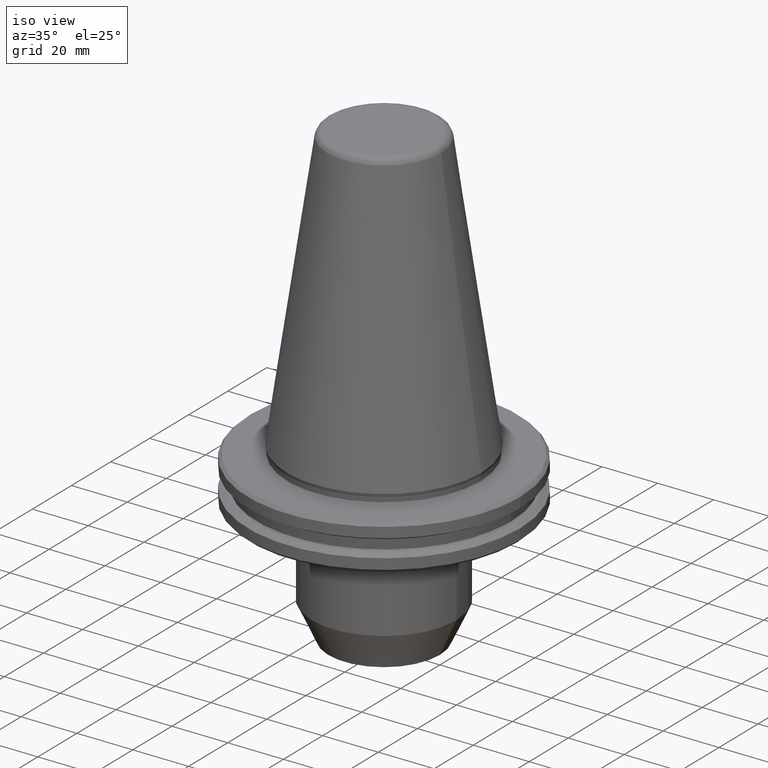
[diagram: clean part render]
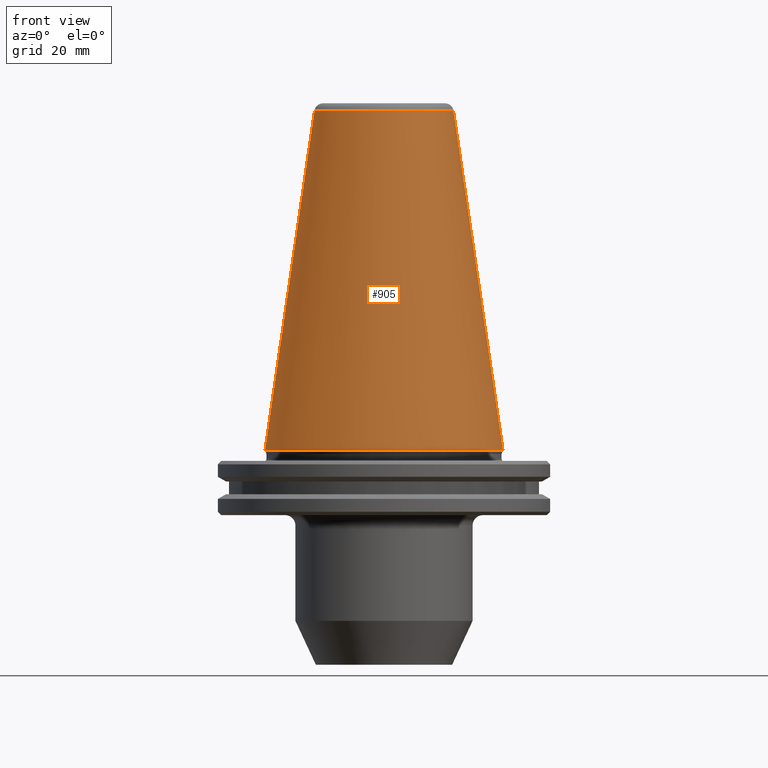
[diagram: tour spotlight — one face highlighted and labeled with its STEP entity id]
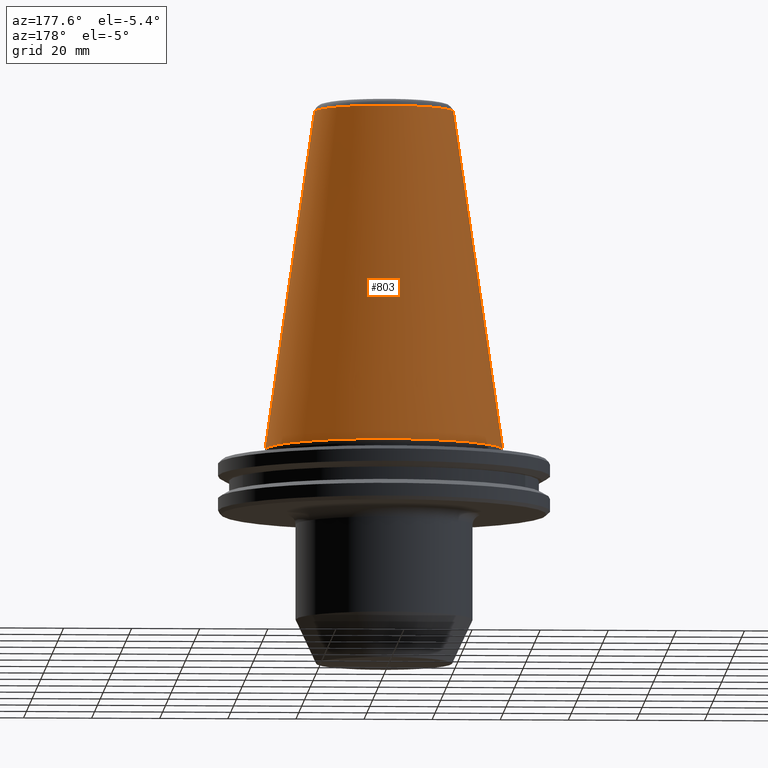
[diagram: tour spotlight — one face highlighted and labeled with its STEP entity id]
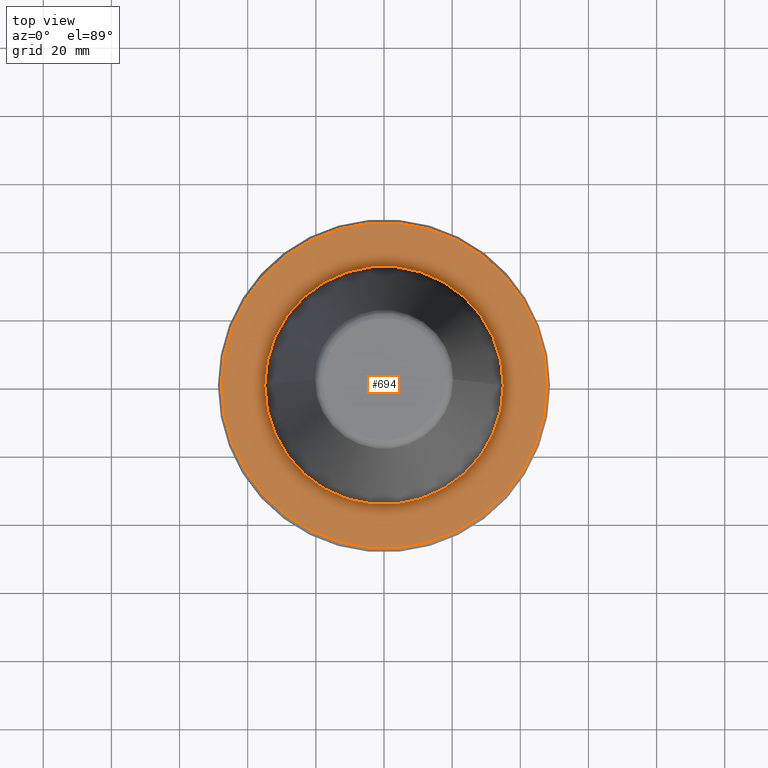
[diagram: tour spotlight — one face highlighted and labeled with its STEP entity id]
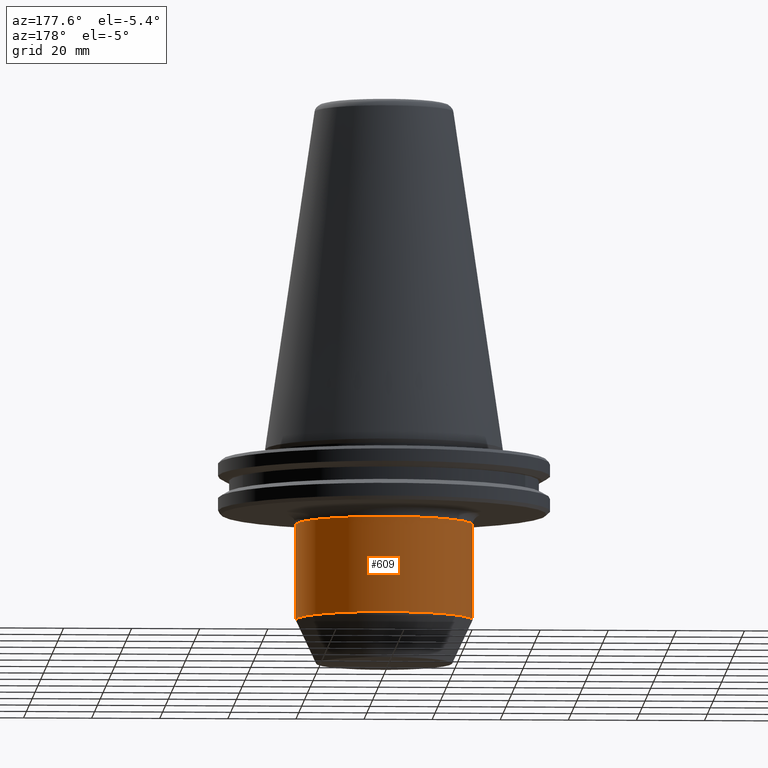
[diagram: tour spotlight — one face highlighted and labeled with its STEP entity id]
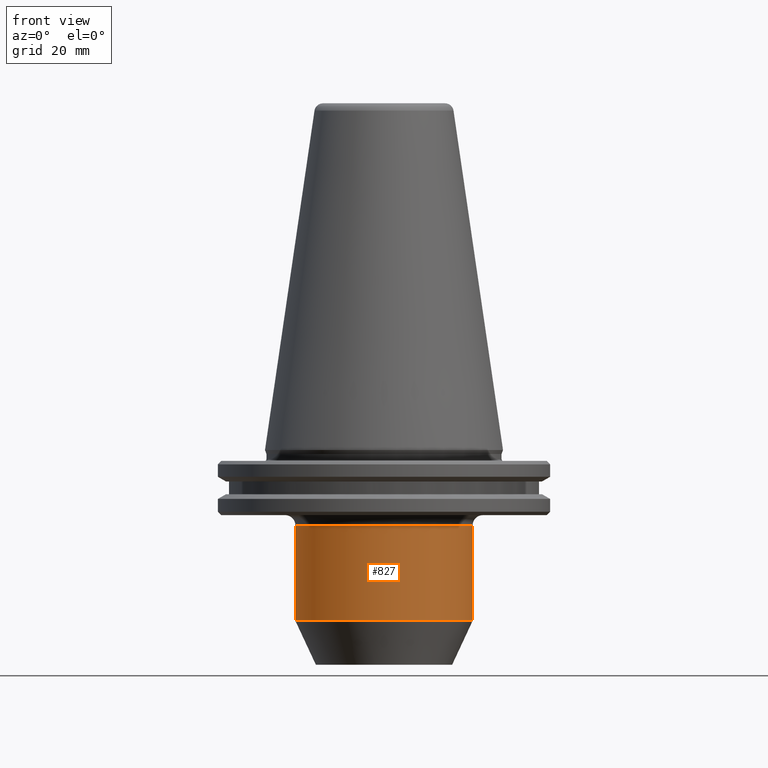
[diagram: tour spotlight — one face highlighted and labeled with its STEP entity id]
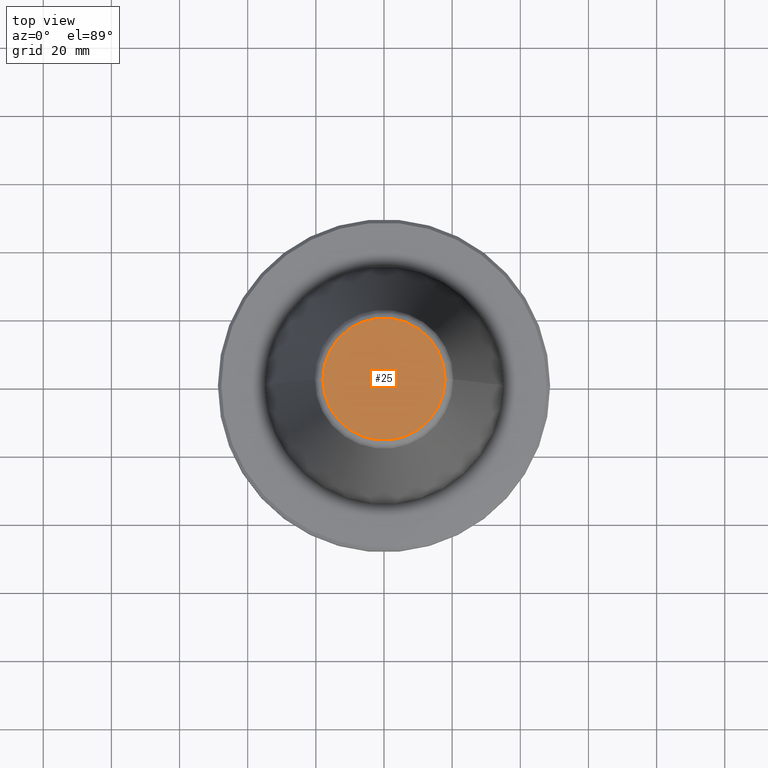
[diagram: tour spotlight — one face highlighted and labeled with its STEP entity id]
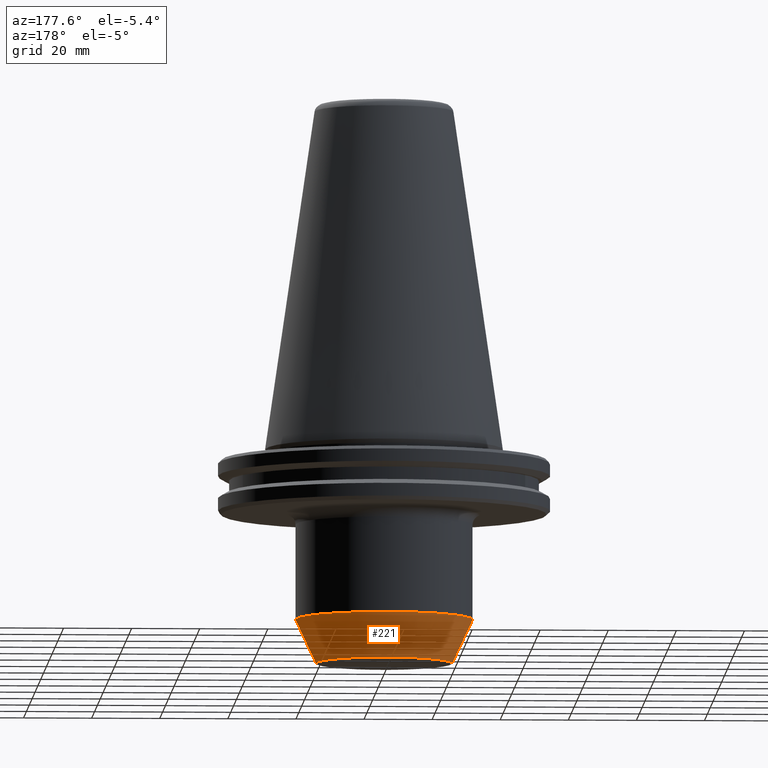
[diagram: tour spotlight — one face highlighted and labeled with its STEP entity id]
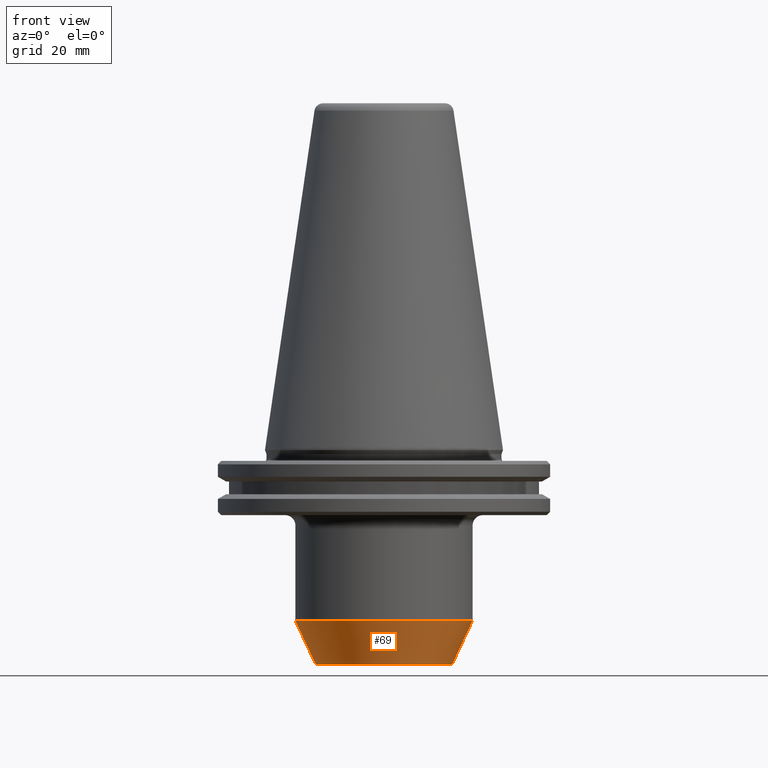
[diagram: tour spotlight — one face highlighted and labeled with its STEP entity id]
A machine part: a face-by-face anatomy tour. The part has 36 B-rep faces; the first image is the clean iso view, then the 8 largest visible faces are spotlighted one at a time (largest first), each with its STEP entity span.

Face 1 — front view, entity #905. In plain terms, the highlighted conical surface has half-angle 8.297 deg.
Definition (entity closure, byte-faithful):
#9 = DIRECTION ( 'NONE',  ( 1.000000000000000000, 0.0000000000000000000, 0.0000000000000000000 ) ) ;
#20 = DIRECTION ( 'NONE',  ( 1.000000000000000000, 0.0000000000000000000, 0.0000000000000000000 ) ) ;
#28 = DIRECTION ( 'NONE',  ( 0.1443082234293891500, 1.767266039134425100E-017, -0.9895327870518760800 ) ) ;
#44 = CARTESIAN_POINT ( 'NONE',  ( -34.92500000000009700, 0.0000000000000000000, -5.551115123125782700E-014 ) ) ;
#70 = AXIS2_PLACEMENT_3D ( 'NONE', #572, #255, #20 ) ;
#116 = CIRCLE ( 'NONE', #204, 34.92500000000009700 ) ;
#124 = CARTESIAN_POINT ( 'NONE',  ( 34.92500000000009700, 4.277078946022142700E-015, -5.551115123125782700E-014 ) ) ;
#167 = CARTESIAN_POINT ( 'NONE',  ( 0.0000000000000000000, 0.0000000000000000000, -5.551115123125782700E-014 ) ) ;
#172 = ORIENTED_EDGE ( 'NONE', *, *, #921, .F. ) ;
#183 = ORIENTED_EDGE ( 'NONE', *, *, #520, .T. ) ;
#189 = EDGE_CURVE ( 'NONE', #199, #673, #403, .T. ) ;
#199 = VERTEX_POINT ( 'NONE', #259 ) ;
#204 = AXIS2_PLACEMENT_3D ( 'NONE', #559, #856, #9 ) ;
#255 = DIRECTION ( 'NONE',  ( -0.0000000000000000000, -0.0000000000000000000, 1.000000000000000000 ) ) ;
#259 = CARTESIAN_POINT ( 'NONE',  ( -20.39829252569114000, 0.0000000000000000000, 99.61077055857353500 ) ) ;
#306 = CARTESIAN_POINT ( 'NONE',  ( -34.92500000000009700, 4.277078946022142700E-015, -5.551115123125782700E-014 ) ) ;
#387 = VECTOR ( 'NONE', #708, 1000.000000000000000 ) ;
#403 = CIRCLE ( 'NONE', #70, 20.39829252569114000 ) ;
#476 = FACE_OUTER_BOUND ( 'NONE', #665, .T. ) ;
#484 = DIRECTION ( 'NONE',  ( 0.0000000000000000000, 0.0000000000000000000, -1.000000000000000000 ) ) ;
#507 = VECTOR ( 'NONE', #28, 1000.000000000000000 ) ;
#520 = EDGE_CURVE ( 'NONE', #199, #724, #1001, .T. ) ;
#559 = CARTESIAN_POINT ( 'NONE',  ( 0.0000000000000000000, 0.0000000000000000000, -5.551115123125782700E-014 ) ) ;
#572 = CARTESIAN_POINT ( 'NONE',  ( 0.0000000000000000000, 0.0000000000000000000, 99.61077055857353500 ) ) ;
#598 = CARTESIAN_POINT ( 'NONE',  ( 20.39829252569114000, 3.387574655494023600E-015, 99.61077055857353500 ) ) ;
#640 = DIRECTION ( 'NONE',  ( -1.000000000000000000, 0.0000000000000000000, 0.0000000000000000000 ) ) ;
#665 = EDGE_LOOP ( 'NONE', ( #172, #971, #183, #772 ) ) ;
#673 = VERTEX_POINT ( 'NONE', #598 ) ;
#691 = LINE ( 'NONE', #124, #507 ) ;
#708 = DIRECTION ( 'NONE',  ( -0.1443082234293891500, 0.0000000000000000000, -0.9895327870518760800 ) ) ;
#724 = VERTEX_POINT ( 'NONE', #306 ) ;
#726 = CARTESIAN_POINT ( 'NONE',  ( 34.92500000000009700, 0.0000000000000000000, -5.551115123125782700E-014 ) ) ;
#772 = ORIENTED_EDGE ( 'NONE', *, *, #904, .T. ) ;
#852 = AXIS2_PLACEMENT_3D ( 'NONE', #167, #484, #640 ) ;
#856 = DIRECTION ( 'NONE',  ( -0.0000000000000000000, -0.0000000000000000000, 1.000000000000000000 ) ) ;
#887 = CONICAL_SURFACE ( 'NONE', #852, 34.92500000000009700, 0.1448138426689039600 ) ;
#904 = EDGE_CURVE ( 'NONE', #724, #917, #116, .T. ) ;
#905 = ADVANCED_FACE ( 'NONE', ( #476 ), #887, .T. ) ;
#917 = VERTEX_POINT ( 'NONE', #726 ) ;
#921 = EDGE_CURVE ( 'NONE', #673, #917, #691, .T. ) ;
#971 = ORIENTED_EDGE ( 'NONE', *, *, #189, .F. ) ;
#1001 = LINE ( 'NONE', #44, #387 ) ;

Face 2 — auxiliary view, entity #803. In plain terms, the highlighted conical surface has half-angle 8.297 deg.
Definition (entity closure, byte-faithful):
#11 = FACE_OUTER_BOUND ( 'NONE', #511, .T. ) ;
#28 = DIRECTION ( 'NONE',  ( 0.1443082234293891500, 1.767266039134425100E-017, -0.9895327870518760800 ) ) ;
#44 = CARTESIAN_POINT ( 'NONE',  ( -34.92500000000009700, 0.0000000000000000000, -5.551115123125782700E-014 ) ) ;
#81 = AXIS2_PLACEMENT_3D ( 'NONE', #299, #771, #412 ) ;
#98 = DIRECTION ( 'NONE',  ( 0.0000000000000000000, 0.0000000000000000000, -1.000000000000000000 ) ) ;
#124 = CARTESIAN_POINT ( 'NONE',  ( 34.92500000000009700, 4.277078946022142700E-015, -5.551115123125782700E-014 ) ) ;
#141 = CARTESIAN_POINT ( 'NONE',  ( 0.0000000000000000000, 0.0000000000000000000, 99.61077055857353500 ) ) ;
#155 = DIRECTION ( 'NONE',  ( -0.0000000000000000000, -0.0000000000000000000, 1.000000000000000000 ) ) ;
#199 = VERTEX_POINT ( 'NONE', #259 ) ;
#209 = EDGE_CURVE ( 'NONE', #673, #199, #788, .T. ) ;
#235 = ORIENTED_EDGE ( 'NONE', *, *, #357, .T. ) ;
#243 = DIRECTION ( 'NONE',  ( -1.000000000000000000, 0.0000000000000000000, 0.0000000000000000000 ) ) ;
#259 = CARTESIAN_POINT ( 'NONE',  ( -20.39829252569114000, 0.0000000000000000000, 99.61077055857353500 ) ) ;
#299 = CARTESIAN_POINT ( 'NONE',  ( 0.0000000000000000000, 0.0000000000000000000, -5.551115123125782700E-014 ) ) ;
#306 = CARTESIAN_POINT ( 'NONE',  ( -34.92500000000009700, 4.277078946022142700E-015, -5.551115123125782700E-014 ) ) ;
#357 = EDGE_CURVE ( 'NONE', #917, #724, #495, .T. ) ;
#377 = CONICAL_SURFACE ( 'NONE', #664, 34.92500000000009700, 0.1448138426689039600 ) ;
#387 = VECTOR ( 'NONE', #708, 1000.000000000000000 ) ;
#412 = DIRECTION ( 'NONE',  ( 1.000000000000000000, 0.0000000000000000000, 0.0000000000000000000 ) ) ;
#495 = CIRCLE ( 'NONE', #81, 34.92500000000009700 ) ;
#507 = VECTOR ( 'NONE', #28, 1000.000000000000000 ) ;
#511 = EDGE_LOOP ( 'NONE', ( #986, #583, #235, #820 ) ) ;
#518 = AXIS2_PLACEMENT_3D ( 'NONE', #141, #155, #740 ) ;
#520 = EDGE_CURVE ( 'NONE', #199, #724, #1001, .T. ) ;
#583 = ORIENTED_EDGE ( 'NONE', *, *, #921, .T. ) ;
#598 = CARTESIAN_POINT ( 'NONE',  ( 20.39829252569114000, 3.387574655494023600E-015, 99.61077055857353500 ) ) ;
#664 = AXIS2_PLACEMENT_3D ( 'NONE', #787, #98, #243 ) ;
#673 = VERTEX_POINT ( 'NONE', #598 ) ;
#691 = LINE ( 'NONE', #124, #507 ) ;
#708 = DIRECTION ( 'NONE',  ( -0.1443082234293891500, 0.0000000000000000000, -0.9895327870518760800 ) ) ;
#724 = VERTEX_POINT ( 'NONE', #306 ) ;
#726 = CARTESIAN_POINT ( 'NONE',  ( 34.92500000000009700, 0.0000000000000000000, -5.551115123125782700E-014 ) ) ;
#740 = DIRECTION ( 'NONE',  ( 1.000000000000000000, 0.0000000000000000000, 0.0000000000000000000 ) ) ;
#771 = DIRECTION ( 'NONE',  ( -0.0000000000000000000, -0.0000000000000000000, 1.000000000000000000 ) ) ;
#787 = CARTESIAN_POINT ( 'NONE',  ( 0.0000000000000000000, 0.0000000000000000000, -5.551115123125782700E-014 ) ) ;
#788 = CIRCLE ( 'NONE', #518, 20.39829252569114000 ) ;
#803 = ADVANCED_FACE ( 'NONE', ( #11 ), #377, .T. ) ;
#820 = ORIENTED_EDGE ( 'NONE', *, *, #520, .F. ) ;
#917 = VERTEX_POINT ( 'NONE', #726 ) ;
#921 = EDGE_CURVE ( 'NONE', #673, #917, #691, .T. ) ;
#986 = ORIENTED_EDGE ( 'NONE', *, *, #209, .F. ) ;
#1001 = LINE ( 'NONE', #44, #387 ) ;

Face 3 — top view, entity #694. In plain terms, the highlighted planar face has unit normal (0, 0, -1).
Definition (entity closure, byte-faithful):
#6 = ORIENTED_EDGE ( 'NONE', *, *, #334, .T. ) ;
#12 = EDGE_LOOP ( 'NONE', ( #786, #610 ) ) ;
#64 = VERTEX_POINT ( 'NONE', #952 ) ;
#65 = PLANE ( 'NONE',  #980 ) ;
#78 = CARTESIAN_POINT ( 'NONE',  ( 0.0000000000000000000, 47.74999999999995700, -3.199999999999869600 ) ) ;
#102 = DIRECTION ( 'NONE',  ( 1.000000000000000000, 0.0000000000000000000, 0.0000000000000000000 ) ) ;
#133 = AXIS2_PLACEMENT_3D ( 'NONE', #837, #488, #102 ) ;
#152 = AXIS2_PLACEMENT_3D ( 'NONE', #968, #802, #270 ) ;
#192 = ORIENTED_EDGE ( 'NONE', *, *, #407, .T. ) ;
#270 = DIRECTION ( 'NONE',  ( 1.000000000000000000, 0.0000000000000000000, 0.0000000000000000000 ) ) ;
#278 = CARTESIAN_POINT ( 'NONE',  ( 0.0000000000000000000, 0.0000000000000000000, -3.199999999999869600 ) ) ;
#300 = DIRECTION ( 'NONE',  ( -1.000000000000000000, 0.0000000000000000000, -0.0000000000000000000 ) ) ;
#334 = EDGE_CURVE ( 'NONE', #662, #372, #703, .T. ) ;
#348 = VERTEX_POINT ( 'NONE', #653 ) ;
#372 = VERTEX_POINT ( 'NONE', #892 ) ;
#388 = DIRECTION ( 'NONE',  ( -0.0000000000000000000, -0.0000000000000000000, 1.000000000000000000 ) ) ;
#391 = CIRCLE ( 'NONE', #774, 34.99999999999992200 ) ;
#407 = EDGE_CURVE ( 'NONE', #372, #662, #470, .T. ) ;
#420 = DIRECTION ( 'NONE',  ( -0.0000000000000000000, -0.0000000000000000000, 1.000000000000000000 ) ) ;
#470 = CIRCLE ( 'NONE', #152, 47.74999999999995700 ) ;
#488 = DIRECTION ( 'NONE',  ( -0.0000000000000000000, -0.0000000000000000000, 1.000000000000000000 ) ) ;
#528 = CARTESIAN_POINT ( 'NONE',  ( 47.74999999999995700, 5.908920805885974100E-015, -3.199999999999869600 ) ) ;
#547 = EDGE_CURVE ( 'NONE', #348, #64, #391, .T. ) ;
#610 = ORIENTED_EDGE ( 'NONE', *, *, #680, .F. ) ;
#653 = CARTESIAN_POINT ( 'NONE',  ( 34.99999999999992200, 0.0000000000000000000, -3.199999999999966900 ) ) ;
#662 = VERTEX_POINT ( 'NONE', #528 ) ;
#680 = EDGE_CURVE ( 'NONE', #64, #348, #890, .T. ) ;
#692 = FACE_OUTER_BOUND ( 'NONE', #900, .T. ) ;
#694 = ADVANCED_FACE ( 'NONE', ( #912, #692 ), #65, .F. ) ;
#703 = CIRCLE ( 'NONE', #133, 47.74999999999995700 ) ;
#712 = AXIS2_PLACEMENT_3D ( 'NONE', #919, #388, #848 ) ;
#774 = AXIS2_PLACEMENT_3D ( 'NONE', #278, #420, #881 ) ;
#786 = ORIENTED_EDGE ( 'NONE', *, *, #547, .F. ) ;
#802 = DIRECTION ( 'NONE',  ( -0.0000000000000000000, -0.0000000000000000000, 1.000000000000000000 ) ) ;
#837 = CARTESIAN_POINT ( 'NONE',  ( 0.0000000000000000000, 0.0000000000000000000, -3.199999999999869600 ) ) ;
#843 = DIRECTION ( 'NONE',  ( 0.0000000000000000000, 0.0000000000000000000, -1.000000000000000000 ) ) ;
#848 = DIRECTION ( 'NONE',  ( 1.000000000000000000, 0.0000000000000000000, 0.0000000000000000000 ) ) ;
#881 = DIRECTION ( 'NONE',  ( 1.000000000000000000, 0.0000000000000000000, 0.0000000000000000000 ) ) ;
#890 = CIRCLE ( 'NONE', #712, 34.99999999999992200 ) ;
#892 = CARTESIAN_POINT ( 'NONE',  ( -47.74999999999995700, 0.0000000000000000000, -3.199999999999869600 ) ) ;
#900 = EDGE_LOOP ( 'NONE', ( #192, #6 ) ) ;
#912 = FACE_BOUND ( 'NONE', #12, .T. ) ;
#919 = CARTESIAN_POINT ( 'NONE',  ( 0.0000000000000000000, 0.0000000000000000000, -3.199999999999869600 ) ) ;
#952 = CARTESIAN_POINT ( 'NONE',  ( -34.99999999999992200, 4.286263797015727000E-015, -3.199999999999966900 ) ) ;
#968 = CARTESIAN_POINT ( 'NONE',  ( 0.0000000000000000000, 0.0000000000000000000, -3.199999999999869600 ) ) ;
#980 = AXIS2_PLACEMENT_3D ( 'NONE', #78, #843, #300 ) ;

Face 4 — auxiliary view, entity #609. In plain terms, the highlighted cylindrical surface (partial cylindrical patch) has radius 26 mm, axis along (-0, -0, 1).
Definition (entity closure, byte-faithful):
#43 = AXIS2_PLACEMENT_3D ( 'NONE', #592, #335, #211 ) ;
#50 = CIRCLE ( 'NONE', #397, 26.00000000000000000 ) ;
#62 = LINE ( 'NONE', #705, #487 ) ;
#68 = DIRECTION ( 'NONE',  ( -0.0000000000000000000, -0.0000000000000000000, 1.000000000000000000 ) ) ;
#132 = ORIENTED_EDGE ( 'NONE', *, *, #696, .T. ) ;
#180 = VECTOR ( 'NONE', #68, 1000.000000000000000 ) ;
#211 = DIRECTION ( 'NONE',  ( 1.000000000000000000, 0.0000000000000000000, 0.0000000000000000000 ) ) ;
#316 = DIRECTION ( 'NONE',  ( 1.000000000000000000, 0.0000000000000000000, 0.0000000000000000000 ) ) ;
#332 = VERTEX_POINT ( 'NONE', #568 ) ;
#335 = DIRECTION ( 'NONE',  ( -0.0000000000000000000, -0.0000000000000000000, 1.000000000000000000 ) ) ;
#397 = AXIS2_PLACEMENT_3D ( 'NONE', #400, #863, #316 ) ;
#400 = CARTESIAN_POINT ( 'NONE',  ( 0.0000000000000000000, 0.0000000000000000000, -22.09999999999995200 ) ) ;
#459 = EDGE_LOOP ( 'NONE', ( #916, #132, #761, #789 ) ) ;
#487 = VECTOR ( 'NONE', #624, 1000.000000000000000 ) ;
#501 = AXIS2_PLACEMENT_3D ( 'NONE', #636, #713, #860 ) ;
#530 = CYLINDRICAL_SURFACE ( 'NONE', #43, 26.00000000000000000 ) ;
#562 = VERTEX_POINT ( 'NONE', #907 ) ;
#568 = CARTESIAN_POINT ( 'NONE',  ( -26.00000000000000000, 3.184081677783118200E-015, -22.09999999999995200 ) ) ;
#592 = CARTESIAN_POINT ( 'NONE',  ( 0.0000000000000000000, 0.0000000000000000000, 158.1180504483445200 ) ) ;
#609 = ADVANCED_FACE ( 'NONE', ( #935 ), #530, .T. ) ;
#624 = DIRECTION ( 'NONE',  ( -0.0000000000000000000, -0.0000000000000000000, 1.000000000000000000 ) ) ;
#636 = CARTESIAN_POINT ( 'NONE',  ( 0.0000000000000000000, 0.0000000000000000000, -50.13295847694268300 ) ) ;
#672 = CIRCLE ( 'NONE', #501, 26.00000000000000000 ) ;
#682 = VERTEX_POINT ( 'NONE', #778 ) ;
#696 = EDGE_CURVE ( 'NONE', #682, #332, #62, .T. ) ;
#701 = CARTESIAN_POINT ( 'NONE',  ( 26.00000000000000000, 0.0000000000000000000, 158.1180504483445200 ) ) ;
#705 = CARTESIAN_POINT ( 'NONE',  ( -26.00000000000000000, 3.184081677783118200E-015, 158.1180504483445200 ) ) ;
#713 = DIRECTION ( 'NONE',  ( -0.0000000000000000000, -0.0000000000000000000, 1.000000000000000000 ) ) ;
#742 = EDGE_CURVE ( 'NONE', #989, #682, #672, .T. ) ;
#761 = ORIENTED_EDGE ( 'NONE', *, *, #888, .T. ) ;
#778 = CARTESIAN_POINT ( 'NONE',  ( -26.00000000000000000, 3.184081677783118200E-015, -50.13295847694268300 ) ) ;
#789 = ORIENTED_EDGE ( 'NONE', *, *, #813, .F. ) ;
#808 = LINE ( 'NONE', #701, #180 ) ;
#813 = EDGE_CURVE ( 'NONE', #989, #562, #808, .T. ) ;
#860 = DIRECTION ( 'NONE',  ( 1.000000000000000000, 0.0000000000000000000, 0.0000000000000000000 ) ) ;
#863 = DIRECTION ( 'NONE',  ( 0.0000000000000000000, 0.0000000000000000000, -1.000000000000000000 ) ) ;
#888 = EDGE_CURVE ( 'NONE', #332, #562, #50, .T. ) ;
#907 = CARTESIAN_POINT ( 'NONE',  ( 26.00000000000000000, 0.0000000000000000000, -22.09999999999995200 ) ) ;
#916 = ORIENTED_EDGE ( 'NONE', *, *, #742, .T. ) ;
#932 = CARTESIAN_POINT ( 'NONE',  ( 26.00000000000000000, 0.0000000000000000000, -50.13295847694268300 ) ) ;
#935 = FACE_OUTER_BOUND ( 'NONE', #459, .T. ) ;
#989 = VERTEX_POINT ( 'NONE', #932 ) ;

Face 5 — front view, entity #827. In plain terms, the highlighted cylindrical surface (partial cylindrical patch) has radius 26 mm, axis along (-0, -0, 1).
Definition (entity closure, byte-faithful):
#60 = AXIS2_PLACEMENT_3D ( 'NONE', #579, #589, #125 ) ;
#62 = LINE ( 'NONE', #705, #487 ) ;
#68 = DIRECTION ( 'NONE',  ( -0.0000000000000000000, -0.0000000000000000000, 1.000000000000000000 ) ) ;
#125 = DIRECTION ( 'NONE',  ( 1.000000000000000000, 0.0000000000000000000, 0.0000000000000000000 ) ) ;
#153 = FACE_OUTER_BOUND ( 'NONE', #923, .T. ) ;
#180 = VECTOR ( 'NONE', #68, 1000.000000000000000 ) ;
#234 = DIRECTION ( 'NONE',  ( -0.0000000000000000000, -0.0000000000000000000, 1.000000000000000000 ) ) ;
#324 = CIRCLE ( 'NONE', #60, 26.00000000000000000 ) ;
#332 = VERTEX_POINT ( 'NONE', #568 ) ;
#341 = ORIENTED_EDGE ( 'NONE', *, *, #389, .T. ) ;
#389 = EDGE_CURVE ( 'NONE', #562, #332, #324, .T. ) ;
#399 = DIRECTION ( 'NONE',  ( 1.000000000000000000, 0.0000000000000000000, 0.0000000000000000000 ) ) ;
#401 = ORIENTED_EDGE ( 'NONE', *, *, #696, .F. ) ;
#434 = CIRCLE ( 'NONE', #603, 26.00000000000000000 ) ;
#486 = DIRECTION ( 'NONE',  ( -0.0000000000000000000, -0.0000000000000000000, 1.000000000000000000 ) ) ;
#487 = VECTOR ( 'NONE', #624, 1000.000000000000000 ) ;
#492 = DIRECTION ( 'NONE',  ( 1.000000000000000000, 0.0000000000000000000, 0.0000000000000000000 ) ) ;
#558 = CARTESIAN_POINT ( 'NONE',  ( 0.0000000000000000000, 0.0000000000000000000, -50.13295847694268300 ) ) ;
#562 = VERTEX_POINT ( 'NONE', #907 ) ;
#568 = CARTESIAN_POINT ( 'NONE',  ( -26.00000000000000000, 3.184081677783118200E-015, -22.09999999999995200 ) ) ;
#579 = CARTESIAN_POINT ( 'NONE',  ( 0.0000000000000000000, 0.0000000000000000000, -22.09999999999995200 ) ) ;
#589 = DIRECTION ( 'NONE',  ( 0.0000000000000000000, 0.0000000000000000000, -1.000000000000000000 ) ) ;
#603 = AXIS2_PLACEMENT_3D ( 'NONE', #558, #486, #399 ) ;
#624 = DIRECTION ( 'NONE',  ( -0.0000000000000000000, -0.0000000000000000000, 1.000000000000000000 ) ) ;
#648 = AXIS2_PLACEMENT_3D ( 'NONE', #941, #234, #492 ) ;
#682 = VERTEX_POINT ( 'NONE', #778 ) ;
#696 = EDGE_CURVE ( 'NONE', #682, #332, #62, .T. ) ;
#701 = CARTESIAN_POINT ( 'NONE',  ( 26.00000000000000000, 0.0000000000000000000, 158.1180504483445200 ) ) ;
#705 = CARTESIAN_POINT ( 'NONE',  ( -26.00000000000000000, 3.184081677783118200E-015, 158.1180504483445200 ) ) ;
#750 = CYLINDRICAL_SURFACE ( 'NONE', #648, 26.00000000000000000 ) ;
#778 = CARTESIAN_POINT ( 'NONE',  ( -26.00000000000000000, 3.184081677783118200E-015, -50.13295847694268300 ) ) ;
#779 = EDGE_CURVE ( 'NONE', #682, #989, #434, .T. ) ;
#808 = LINE ( 'NONE', #701, #180 ) ;
#813 = EDGE_CURVE ( 'NONE', #989, #562, #808, .T. ) ;
#823 = ORIENTED_EDGE ( 'NONE', *, *, #779, .T. ) ;
#827 = ADVANCED_FACE ( 'NONE', ( #153 ), #750, .T. ) ;
#870 = ORIENTED_EDGE ( 'NONE', *, *, #813, .T. ) ;
#907 = CARTESIAN_POINT ( 'NONE',  ( 26.00000000000000000, 0.0000000000000000000, -22.09999999999995200 ) ) ;
#923 = EDGE_LOOP ( 'NONE', ( #401, #823, #870, #341 ) ) ;
#932 = CARTESIAN_POINT ( 'NONE',  ( 26.00000000000000000, 0.0000000000000000000, -50.13295847694268300 ) ) ;
#941 = CARTESIAN_POINT ( 'NONE',  ( 0.0000000000000000000, 0.0000000000000000000, 158.1180504483445200 ) ) ;
#989 = VERTEX_POINT ( 'NONE', #932 ) ;

Face 6 — top view, entity #25. In plain terms, the highlighted planar face has unit normal (0, 0, -1).
Definition (entity closure, byte-faithful):
#15 = DIRECTION ( 'NONE',  ( -0.0000000000000000000, -0.0000000000000000000, 1.000000000000000000 ) ) ;
#25 = ADVANCED_FACE ( 'NONE', ( #799 ), #159, .F. ) ;
#82 = CARTESIAN_POINT ( 'NONE',  ( 0.0000000000000000000, 0.0000000000000000000, 101.7500000000000900 ) ) ;
#159 = PLANE ( 'NONE',  #369 ) ;
#165 = VERTEX_POINT ( 'NONE', #963 ) ;
#197 = ORIENTED_EDGE ( 'NONE', *, *, #707, .T. ) ;
#264 = CIRCLE ( 'NONE', #431, 17.92446055806129500 ) ;
#269 = CARTESIAN_POINT ( 'NONE',  ( 0.0000000000000000000, 0.0000000000000000000, 101.7500000000000900 ) ) ;
#282 = CIRCLE ( 'NONE', #983, 17.92446055806129500 ) ;
#320 = DIRECTION ( 'NONE',  ( 0.0000000000000000000, 0.0000000000000000000, -1.000000000000000000 ) ) ;
#322 = ORIENTED_EDGE ( 'NONE', *, *, #933, .T. ) ;
#369 = AXIS2_PLACEMENT_3D ( 'NONE', #851, #320, #716 ) ;
#431 = AXIS2_PLACEMENT_3D ( 'NONE', #82, #15, #777 ) ;
#512 = VERTEX_POINT ( 'NONE', #519 ) ;
#519 = CARTESIAN_POINT ( 'NONE',  ( -17.92446055806129500, 2.346591844926584100E-015, 101.7500000000000900 ) ) ;
#669 = EDGE_LOOP ( 'NONE', ( #322, #197 ) ) ;
#707 = EDGE_CURVE ( 'NONE', #512, #165, #264, .T. ) ;
#716 = DIRECTION ( 'NONE',  ( -1.000000000000000000, 0.0000000000000000000, -0.0000000000000000000 ) ) ;
#747 = DIRECTION ( 'NONE',  ( -0.0000000000000000000, -0.0000000000000000000, 1.000000000000000000 ) ) ;
#777 = DIRECTION ( 'NONE',  ( 1.000000000000000000, 0.0000000000000000000, 0.0000000000000000000 ) ) ;
#799 = FACE_OUTER_BOUND ( 'NONE', #669, .T. ) ;
#851 = CARTESIAN_POINT ( 'NONE',  ( 0.0000000000000000000, 17.92446055806129500, 101.7500000000000100 ) ) ;
#933 = EDGE_CURVE ( 'NONE', #165, #512, #282, .T. ) ;
#963 = CARTESIAN_POINT ( 'NONE',  ( 17.92446055806129500, 0.0000000000000000000, 101.7500000000000900 ) ) ;
#970 = DIRECTION ( 'NONE',  ( 1.000000000000000000, 0.0000000000000000000, 0.0000000000000000000 ) ) ;
#983 = AXIS2_PLACEMENT_3D ( 'NONE', #269, #747, #970 ) ;

Face 7 — auxiliary view, entity #221. In plain terms, the highlighted conical surface has half-angle 25 deg.
Definition (entity closure, byte-faithful):
#47 = CARTESIAN_POINT ( 'NONE',  ( 20.00000000000000000, 0.0000000000000000000, -63.00000000000000000 ) ) ;
#221 = ADVANCED_FACE ( 'NONE', ( #588 ), #746, .T. ) ;
#281 = ORIENTED_EDGE ( 'NONE', *, *, #577, .T. ) ;
#303 = EDGE_LOOP ( 'NONE', ( #965, #281, #651, #571 ) ) ;
#360 = CARTESIAN_POINT ( 'NONE',  ( -20.00000000000000000, 2.816687638038912400E-015, -63.00000000000000000 ) ) ;
#363 = VECTOR ( 'NONE', #666, 1000.000000000000000 ) ;
#378 = DIRECTION ( 'NONE',  ( 1.000000000000000000, 0.0000000000000000000, 0.0000000000000000000 ) ) ;
#499 = DIRECTION ( 'NONE',  ( -0.0000000000000000000, -0.0000000000000000000, 1.000000000000000000 ) ) ;
#501 = AXIS2_PLACEMENT_3D ( 'NONE', #636, #713, #860 ) ;
#525 = EDGE_CURVE ( 'NONE', #620, #560, #842, .T. ) ;
#529 = EDGE_CURVE ( 'NONE', #620, #989, #798, .T. ) ;
#560 = VERTEX_POINT ( 'NONE', #360 ) ;
#571 = ORIENTED_EDGE ( 'NONE', *, *, #529, .F. ) ;
#577 = EDGE_CURVE ( 'NONE', #560, #682, #605, .T. ) ;
#585 = CARTESIAN_POINT ( 'NONE',  ( 0.0000000000000000000, 0.0000000000000000000, -63.00000000000000000 ) ) ;
#588 = FACE_OUTER_BOUND ( 'NONE', #303, .T. ) ;
#599 = DIRECTION ( 'NONE',  ( 0.4226182617407003300, 0.0000000000000000000, 0.9063077870366494900 ) ) ;
#605 = LINE ( 'NONE', #817, #363 ) ;
#620 = VERTEX_POINT ( 'NONE', #819 ) ;
#636 = CARTESIAN_POINT ( 'NONE',  ( 0.0000000000000000000, 0.0000000000000000000, -50.13295847694268300 ) ) ;
#651 = ORIENTED_EDGE ( 'NONE', *, *, #742, .F. ) ;
#666 = DIRECTION ( 'NONE',  ( -0.4226182617407003300, 5.175581015019669900E-017, 0.9063077870366494900 ) ) ;
#672 = CIRCLE ( 'NONE', #501, 26.00000000000000000 ) ;
#682 = VERTEX_POINT ( 'NONE', #778 ) ;
#713 = DIRECTION ( 'NONE',  ( -0.0000000000000000000, -0.0000000000000000000, 1.000000000000000000 ) ) ;
#742 = EDGE_CURVE ( 'NONE', #989, #682, #672, .T. ) ;
#746 = CONICAL_SURFACE ( 'NONE', #753, 20.00000000000000000, 0.4363323129985833800 ) ;
#753 = AXIS2_PLACEMENT_3D ( 'NONE', #585, #499, #378 ) ;
#778 = CARTESIAN_POINT ( 'NONE',  ( -26.00000000000000000, 3.184081677783118200E-015, -50.13295847694268300 ) ) ;
#792 = AXIS2_PLACEMENT_3D ( 'NONE', #903, #999, #869 ) ;
#798 = LINE ( 'NONE', #47, #981 ) ;
#817 = CARTESIAN_POINT ( 'NONE',  ( -20.00000000000000000, 2.449293598294706500E-015, -63.00000000000000000 ) ) ;
#819 = CARTESIAN_POINT ( 'NONE',  ( 20.00000000000000000, 0.0000000000000000000, -63.00000000000000000 ) ) ;
#842 = CIRCLE ( 'NONE', #792, 20.00000000000000000 ) ;
#860 = DIRECTION ( 'NONE',  ( 1.000000000000000000, 0.0000000000000000000, 0.0000000000000000000 ) ) ;
#869 = DIRECTION ( 'NONE',  ( 1.000000000000000000, 0.0000000000000000000, 0.0000000000000000000 ) ) ;
#903 = CARTESIAN_POINT ( 'NONE',  ( 0.0000000000000000000, 0.0000000000000000000, -63.00000000000000000 ) ) ;
#932 = CARTESIAN_POINT ( 'NONE',  ( 26.00000000000000000, 0.0000000000000000000, -50.13295847694268300 ) ) ;
#965 = ORIENTED_EDGE ( 'NONE', *, *, #525, .T. ) ;
#981 = VECTOR ( 'NONE', #599, 1000.000000000000000 ) ;
#989 = VERTEX_POINT ( 'NONE', #932 ) ;
#999 = DIRECTION ( 'NONE',  ( -0.0000000000000000000, -0.0000000000000000000, 1.000000000000000000 ) ) ;

Face 8 — front view, entity #69. In plain terms, the highlighted conical surface has half-angle 25 deg.
Definition (entity closure, byte-faithful):
#4 = DIRECTION ( 'NONE',  ( -0.0000000000000000000, -0.0000000000000000000, 1.000000000000000000 ) ) ;
#29 = ORIENTED_EDGE ( 'NONE', *, *, #577, .F. ) ;
#47 = CARTESIAN_POINT ( 'NONE',  ( 20.00000000000000000, 0.0000000000000000000, -63.00000000000000000 ) ) ;
#69 = ADVANCED_FACE ( 'NONE', ( #262 ), #240, .T. ) ;
#140 = AXIS2_PLACEMENT_3D ( 'NONE', #959, #880, #886 ) ;
#240 = CONICAL_SURFACE ( 'NONE', #140, 20.00000000000000000, 0.4363323129985833800 ) ;
#249 = EDGE_LOOP ( 'NONE', ( #29, #745, #652, #759 ) ) ;
#262 = FACE_OUTER_BOUND ( 'NONE', #249, .T. ) ;
#360 = CARTESIAN_POINT ( 'NONE',  ( -20.00000000000000000, 2.816687638038912400E-015, -63.00000000000000000 ) ) ;
#363 = VECTOR ( 'NONE', #666, 1000.000000000000000 ) ;
#399 = DIRECTION ( 'NONE',  ( 1.000000000000000000, 0.0000000000000000000, 0.0000000000000000000 ) ) ;
#434 = CIRCLE ( 'NONE', #603, 26.00000000000000000 ) ;
#481 = DIRECTION ( 'NONE',  ( 1.000000000000000000, 0.0000000000000000000, 0.0000000000000000000 ) ) ;
#486 = DIRECTION ( 'NONE',  ( -0.0000000000000000000, -0.0000000000000000000, 1.000000000000000000 ) ) ;
#529 = EDGE_CURVE ( 'NONE', #620, #989, #798, .T. ) ;
#536 = AXIS2_PLACEMENT_3D ( 'NONE', #553, #4, #481 ) ;
#553 = CARTESIAN_POINT ( 'NONE',  ( 0.0000000000000000000, 0.0000000000000000000, -63.00000000000000000 ) ) ;
#558 = CARTESIAN_POINT ( 'NONE',  ( 0.0000000000000000000, 0.0000000000000000000, -50.13295847694268300 ) ) ;
#560 = VERTEX_POINT ( 'NONE', #360 ) ;
#577 = EDGE_CURVE ( 'NONE', #560, #682, #605, .T. ) ;
#599 = DIRECTION ( 'NONE',  ( 0.4226182617407003300, 0.0000000000000000000, 0.9063077870366494900 ) ) ;
#603 = AXIS2_PLACEMENT_3D ( 'NONE', #558, #486, #399 ) ;
#605 = LINE ( 'NONE', #817, #363 ) ;
#620 = VERTEX_POINT ( 'NONE', #819 ) ;
#649 = CIRCLE ( 'NONE', #536, 20.00000000000000000 ) ;
#652 = ORIENTED_EDGE ( 'NONE', *, *, #529, .T. ) ;
#666 = DIRECTION ( 'NONE',  ( -0.4226182617407003300, 5.175581015019669900E-017, 0.9063077870366494900 ) ) ;
#682 = VERTEX_POINT ( 'NONE', #778 ) ;
#745 = ORIENTED_EDGE ( 'NONE', *, *, #757, .T. ) ;
#757 = EDGE_CURVE ( 'NONE', #560, #620, #649, .T. ) ;
#759 = ORIENTED_EDGE ( 'NONE', *, *, #779, .F. ) ;
#778 = CARTESIAN_POINT ( 'NONE',  ( -26.00000000000000000, 3.184081677783118200E-015, -50.13295847694268300 ) ) ;
#779 = EDGE_CURVE ( 'NONE', #682, #989, #434, .T. ) ;
#798 = LINE ( 'NONE', #47, #981 ) ;
#817 = CARTESIAN_POINT ( 'NONE',  ( -20.00000000000000000, 2.449293598294706500E-015, -63.00000000000000000 ) ) ;
#819 = CARTESIAN_POINT ( 'NONE',  ( 20.00000000000000000, 0.0000000000000000000, -63.00000000000000000 ) ) ;
#880 = DIRECTION ( 'NONE',  ( -0.0000000000000000000, -0.0000000000000000000, 1.000000000000000000 ) ) ;
#886 = DIRECTION ( 'NONE',  ( 1.000000000000000000, 0.0000000000000000000, 0.0000000000000000000 ) ) ;
#932 = CARTESIAN_POINT ( 'NONE',  ( 26.00000000000000000, 0.0000000000000000000, -50.13295847694268300 ) ) ;
#959 = CARTESIAN_POINT ( 'NONE',  ( 0.0000000000000000000, 0.0000000000000000000, -63.00000000000000000 ) ) ;
#981 = VECTOR ( 'NONE', #599, 1000.000000000000000 ) ;
#989 = VERTEX_POINT ( 'NONE', #932 ) ;